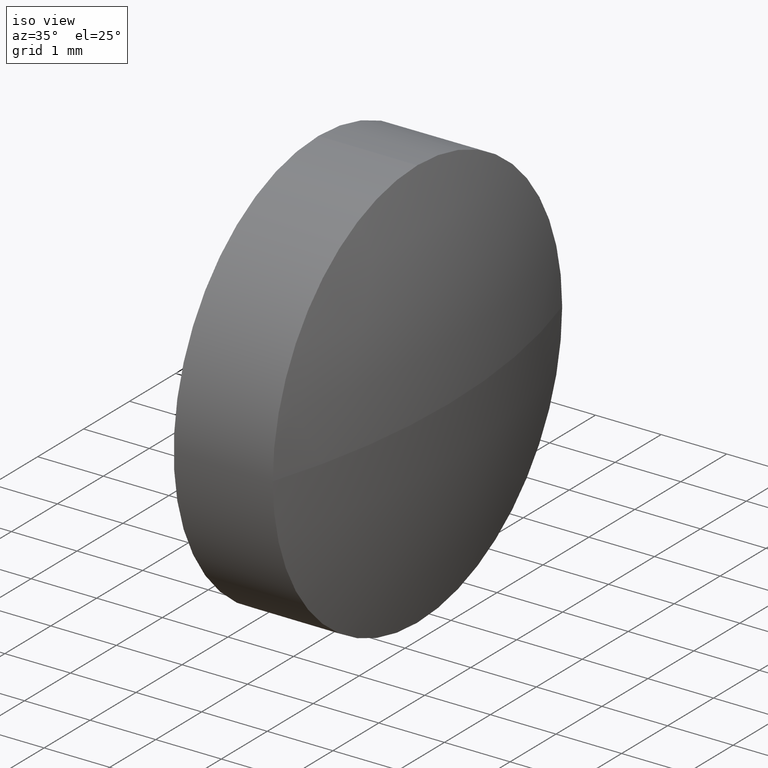
[diagram: clean part render]
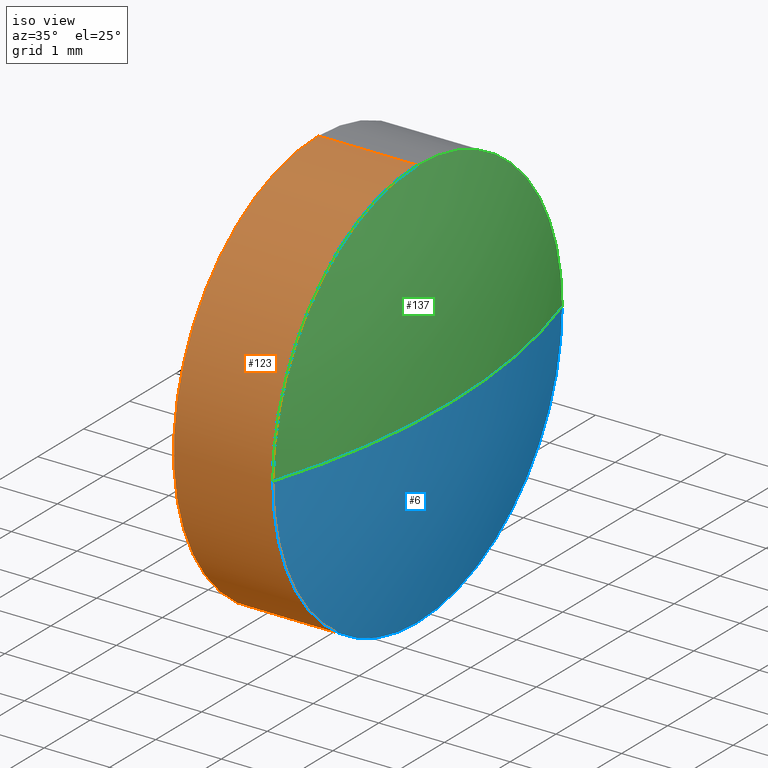
[diagram: same view with three faces highlighted in distinct colors, each labeled with its STEP entity id]
A machine part, iso view with three faces highlighted in distinct colors.
Their STEP definitions:

[orange] entity #123 — the highlighted cylindrical surface (partial cylindrical patch) has radius 3.15 mm, axis along (-1, -0, -0).
#2 = LINE ( 'NONE', #28, #93 ) ;
#5 = DIRECTION ( 'NONE',  ( -1.000000000000000000, -0.0000000000000000000, -0.0000000000000000000 ) ) ;
#7 = VERTEX_POINT ( 'NONE', #164 ) ;
#10 = VERTEX_POINT ( 'NONE', #106 ) ;
#13 = EDGE_CURVE ( 'NONE', #172, #152, #20, .T. ) ;
#20 = LINE ( 'NONE', #78, #95 ) ;
#24 = CIRCLE ( 'NONE', #118, 3.149999999999999900 ) ;
#25 = ORIENTED_EDGE ( 'NONE', *, *, #60, .F. ) ;
#28 = CARTESIAN_POINT ( 'NONE',  ( 563.4918386619660900, 45.46463200526830000, -3.149999999999999900 ) ) ;
#29 = DIRECTION ( 'NONE',  ( -1.000000000000000000, -0.0000000000000000000, -0.0000000000000000000 ) ) ;
#39 = CIRCLE ( 'NONE', #144, 3.149999999999999900 ) ;
#42 = EDGE_CURVE ( 'NONE', #7, #172, #39, .T. ) ;
#43 = CARTESIAN_POINT ( 'NONE',  ( 565.8634668315505700, 45.46463200526830000, 0.0000000000000000000 ) ) ;
#53 = DIRECTION ( 'NONE',  ( -1.000000000000000000, -0.0000000000000000000, -0.0000000000000000000 ) ) ;
#54 = AXIS2_PLACEMENT_3D ( 'NONE', #124, #80, #82 ) ;
#55 = CARTESIAN_POINT ( 'NONE',  ( 564.3534668315505800, 45.46463200526830000, 0.0000000000000000000 ) ) ;
#60 = EDGE_CURVE ( 'NONE', #183, #10, #2, .T. ) ;
#75 = FACE_OUTER_BOUND ( 'NONE', #115, .T. ) ;
#78 = CARTESIAN_POINT ( 'NONE',  ( 563.4918386619660900, 45.46463200526830000, 3.149999999999999900 ) ) ;
#80 = DIRECTION ( 'NONE',  ( -1.000000000000000000, -0.0000000000000000000, -0.0000000000000000000 ) ) ;
#82 = DIRECTION ( 'NONE',  ( 0.0000000000000000000, 0.0000000000000000000, 1.000000000000000000 ) ) ;
#83 = CARTESIAN_POINT ( 'NONE',  ( 565.8634668315505700, 45.46463200526830000, -3.149999999999999900 ) ) ;
#89 = CIRCLE ( 'NONE', #186, 3.149999999999999900 ) ;
#93 = VECTOR ( 'NONE', #29, 1000.000000000000000 ) ;
#95 = VECTOR ( 'NONE', #5, 1000.000000000000000 ) ;
#105 = ORIENTED_EDGE ( 'NONE', *, *, #13, .T. ) ;
#106 = CARTESIAN_POINT ( 'NONE',  ( 564.3534668315505800, 45.46463200526830000, -3.149999999999999900 ) ) ;
#110 = DIRECTION ( 'NONE',  ( -1.000000000000000000, -0.0000000000000000000, -0.0000000000000000000 ) ) ;
#115 = EDGE_LOOP ( 'NONE', ( #25, #143, #158, #105, #150 ) ) ;
#118 = AXIS2_PLACEMENT_3D ( 'NONE', #55, #53, #142 ) ;
#123 = ADVANCED_FACE ( 'NONE', ( #75 ), #157, .T. ) ;
#124 = CARTESIAN_POINT ( 'NONE',  ( 563.4918386619660900, 45.46463200526830000, 0.0000000000000000000 ) ) ;
#132 = DIRECTION ( 'NONE',  ( -1.000000000000000000, -0.0000000000000000000, -0.0000000000000000000 ) ) ;
#142 = DIRECTION ( 'NONE',  ( 0.0000000000000000000, 0.0000000000000000000, 1.000000000000000000 ) ) ;
#143 = ORIENTED_EDGE ( 'NONE', *, *, #185, .T. ) ;
#144 = AXIS2_PLACEMENT_3D ( 'NONE', #43, #132, #162 ) ;
#146 = CARTESIAN_POINT ( 'NONE',  ( 565.8634668315505700, 45.46463200526830000, 3.149999999999999900 ) ) ;
#148 = EDGE_CURVE ( 'NONE', #10, #152, #24, .T. ) ;
#150 = ORIENTED_EDGE ( 'NONE', *, *, #148, .F. ) ;
#152 = VERTEX_POINT ( 'NONE', #167 ) ;
#156 = DIRECTION ( 'NONE',  ( 0.0000000000000000000, 0.0000000000000000000, 1.000000000000000000 ) ) ;
#157 = CYLINDRICAL_SURFACE ( 'NONE', #54, 3.149999999999999900 ) ;
#158 = ORIENTED_EDGE ( 'NONE', *, *, #42, .T. ) ;
#159 = CARTESIAN_POINT ( 'NONE',  ( 565.8634668315505700, 45.46463200526830000, 0.0000000000000000000 ) ) ;
#162 = DIRECTION ( 'NONE',  ( 0.0000000000000000000, 0.0000000000000000000, 1.000000000000000000 ) ) ;
#164 = CARTESIAN_POINT ( 'NONE',  ( 565.8634668315505700, 42.31463200526834400, 0.0000000000000000000 ) ) ;
#167 = CARTESIAN_POINT ( 'NONE',  ( 564.3534668315505800, 45.46463200526830000, 3.149999999999999900 ) ) ;
#172 = VERTEX_POINT ( 'NONE', #146 ) ;
#183 = VERTEX_POINT ( 'NONE', #83 ) ;
#185 = EDGE_CURVE ( 'NONE', #183, #7, #89, .T. ) ;
#186 = AXIS2_PLACEMENT_3D ( 'NONE', #159, #110, #156 ) ;

[blue] entity #6 — the highlighted spherical surface has radius 10.37 mm.
#1 = ORIENTED_EDGE ( 'NONE', *, *, #22, .F. ) ;
#4 = DIRECTION ( 'NONE',  ( 0.0000000000000000000, 0.0000000000000000000, 1.000000000000000000 ) ) ;
#6 = ADVANCED_FACE ( 'NONE', ( #99 ), #65, .T. ) ;
#7 = VERTEX_POINT ( 'NONE', #164 ) ;
#18 = DIRECTION ( 'NONE',  ( -1.000000000000000000, 0.0000000000000000000, 0.0000000000000000000 ) ) ;
#21 = AXIS2_PLACEMENT_3D ( 'NONE', #31, #66, #18 ) ;
#22 = EDGE_CURVE ( 'NONE', #179, #72, #168, .T. ) ;
#27 = DIRECTION ( 'NONE',  ( 0.0000000000000000000, -1.000000000000000000, 0.0000000000000000000 ) ) ;
#31 = CARTESIAN_POINT ( 'NONE',  ( 555.9834668315506900, 45.46463200526834900, 0.0000000000000000000 ) ) ;
#34 = CARTESIAN_POINT ( 'NONE',  ( 565.8634668315505700, 48.61463200526829800, 3.857637417314100600E-016 ) ) ;
#44 = DIRECTION ( 'NONE',  ( 0.0000000000000000000, -1.224646799147353200E-016, 1.000000000000000000 ) ) ;
#49 = EDGE_CURVE ( 'NONE', #72, #183, #97, .T. ) ;
#62 = ORIENTED_EDGE ( 'NONE', *, *, #133, .T. ) ;
#65 = SPHERICAL_SURFACE ( 'NONE', #100, 10.36999999999988000 ) ;
#66 = DIRECTION ( 'NONE',  ( 0.0000000000000000000, 0.0000000000000000000, -1.000000000000000000 ) ) ;
#72 = VERTEX_POINT ( 'NONE', #34 ) ;
#77 = ORIENTED_EDGE ( 'NONE', *, *, #185, .F. ) ;
#83 = CARTESIAN_POINT ( 'NONE',  ( 565.8634668315505700, 45.46463200526830000, -3.149999999999999900 ) ) ;
#84 = DIRECTION ( 'NONE',  ( -1.000000000000000000, -0.0000000000000000000, -0.0000000000000000000 ) ) ;
#87 = ORIENTED_EDGE ( 'NONE', *, *, #49, .F. ) ;
#89 = CIRCLE ( 'NONE', #186, 3.149999999999999900 ) ;
#97 = CIRCLE ( 'NONE', #169, 3.149999999999999900 ) ;
#99 = FACE_OUTER_BOUND ( 'NONE', #102, .T. ) ;
#100 = AXIS2_PLACEMENT_3D ( 'NONE', #175, #4, #27 ) ;
#102 = EDGE_LOOP ( 'NONE', ( #1, #62, #77, #87 ) ) ;
#110 = DIRECTION ( 'NONE',  ( -1.000000000000000000, -0.0000000000000000000, -0.0000000000000000000 ) ) ;
#112 = AXIS2_PLACEMENT_3D ( 'NONE', #134, #44, #135 ) ;
#114 = CIRCLE ( 'NONE', #21, 10.36999999999988000 ) ;
#122 = CARTESIAN_POINT ( 'NONE',  ( 565.8634668315505700, 45.46463200526830000, 0.0000000000000000000 ) ) ;
#133 = EDGE_CURVE ( 'NONE', #179, #7, #114, .T. ) ;
#134 = CARTESIAN_POINT ( 'NONE',  ( 555.9834668315506900, 45.46463200526834900, 0.0000000000000000000 ) ) ;
#135 = DIRECTION ( 'NONE',  ( 0.0000000000000000000, -1.000000000000000000, -1.224646799147353200E-016 ) ) ;
#156 = DIRECTION ( 'NONE',  ( 0.0000000000000000000, 0.0000000000000000000, 1.000000000000000000 ) ) ;
#159 = CARTESIAN_POINT ( 'NONE',  ( 565.8634668315505700, 45.46463200526830000, 0.0000000000000000000 ) ) ;
#164 = CARTESIAN_POINT ( 'NONE',  ( 565.8634668315505700, 42.31463200526834400, 0.0000000000000000000 ) ) ;
#168 = CIRCLE ( 'NONE', #112, 10.36999999999988000 ) ;
#169 = AXIS2_PLACEMENT_3D ( 'NONE', #122, #84, #177 ) ;
#175 = CARTESIAN_POINT ( 'NONE',  ( 555.9834668315506900, 45.46463200526834900, 0.0000000000000000000 ) ) ;
#177 = DIRECTION ( 'NONE',  ( 0.0000000000000000000, 0.0000000000000000000, 1.000000000000000000 ) ) ;
#179 = VERTEX_POINT ( 'NONE', #180 ) ;
#180 = CARTESIAN_POINT ( 'NONE',  ( 566.3534668315505800, 45.46463200526834900, 0.0000000000000000000 ) ) ;
#183 = VERTEX_POINT ( 'NONE', #83 ) ;
#185 = EDGE_CURVE ( 'NONE', #183, #7, #89, .T. ) ;
#186 = AXIS2_PLACEMENT_3D ( 'NONE', #159, #110, #156 ) ;

[green] entity #137 — the highlighted spherical surface has radius 10.37 mm.
#7 = VERTEX_POINT ( 'NONE', #164 ) ;
#9 = CARTESIAN_POINT ( 'NONE',  ( 555.9834668315506900, 45.46463200526834900, 0.0000000000000000000 ) ) ;
#18 = DIRECTION ( 'NONE',  ( -1.000000000000000000, 0.0000000000000000000, 0.0000000000000000000 ) ) ;
#21 = AXIS2_PLACEMENT_3D ( 'NONE', #31, #66, #18 ) ;
#22 = EDGE_CURVE ( 'NONE', #179, #72, #168, .T. ) ;
#26 = ORIENTED_EDGE ( 'NONE', *, *, #56, .F. ) ;
#31 = CARTESIAN_POINT ( 'NONE',  ( 555.9834668315506900, 45.46463200526834900, 0.0000000000000000000 ) ) ;
#32 = AXIS2_PLACEMENT_3D ( 'NONE', #9, #91, #108 ) ;
#34 = CARTESIAN_POINT ( 'NONE',  ( 565.8634668315505700, 48.61463200526829800, 3.857637417314100600E-016 ) ) ;
#37 = SPHERICAL_SURFACE ( 'NONE', #32, 10.36999999999988000 ) ;
#39 = CIRCLE ( 'NONE', #144, 3.149999999999999900 ) ;
#42 = EDGE_CURVE ( 'NONE', #7, #172, #39, .T. ) ;
#43 = CARTESIAN_POINT ( 'NONE',  ( 565.8634668315505700, 45.46463200526830000, 0.0000000000000000000 ) ) ;
#44 = DIRECTION ( 'NONE',  ( 0.0000000000000000000, -1.224646799147353200E-016, 1.000000000000000000 ) ) ;
#46 = CARTESIAN_POINT ( 'NONE',  ( 565.8634668315505700, 45.46463200526830000, 0.0000000000000000000 ) ) ;
#47 = DIRECTION ( 'NONE',  ( 0.0000000000000000000, 0.0000000000000000000, 1.000000000000000000 ) ) ;
#52 = CIRCLE ( 'NONE', #176, 3.149999999999999900 ) ;
#56 = EDGE_CURVE ( 'NONE', #172, #72, #52, .T. ) ;
#66 = DIRECTION ( 'NONE',  ( 0.0000000000000000000, 0.0000000000000000000, -1.000000000000000000 ) ) ;
#72 = VERTEX_POINT ( 'NONE', #34 ) ;
#74 = FACE_OUTER_BOUND ( 'NONE', #161, .T. ) ;
#81 = ORIENTED_EDGE ( 'NONE', *, *, #133, .F. ) ;
#91 = DIRECTION ( 'NONE',  ( 0.0000000000000000000, 0.0000000000000000000, 1.000000000000000000 ) ) ;
#108 = DIRECTION ( 'NONE',  ( 0.0000000000000000000, -1.000000000000000000, 0.0000000000000000000 ) ) ;
#112 = AXIS2_PLACEMENT_3D ( 'NONE', #134, #44, #135 ) ;
#114 = CIRCLE ( 'NONE', #21, 10.36999999999988000 ) ;
#121 = ORIENTED_EDGE ( 'NONE', *, *, #42, .F. ) ;
#131 = ORIENTED_EDGE ( 'NONE', *, *, #22, .T. ) ;
#132 = DIRECTION ( 'NONE',  ( -1.000000000000000000, -0.0000000000000000000, -0.0000000000000000000 ) ) ;
#133 = EDGE_CURVE ( 'NONE', #179, #7, #114, .T. ) ;
#134 = CARTESIAN_POINT ( 'NONE',  ( 555.9834668315506900, 45.46463200526834900, 0.0000000000000000000 ) ) ;
#135 = DIRECTION ( 'NONE',  ( 0.0000000000000000000, -1.000000000000000000, -1.224646799147353200E-016 ) ) ;
#137 = ADVANCED_FACE ( 'NONE', ( #74 ), #37, .T. ) ;
#138 = DIRECTION ( 'NONE',  ( -1.000000000000000000, -0.0000000000000000000, -0.0000000000000000000 ) ) ;
#144 = AXIS2_PLACEMENT_3D ( 'NONE', #43, #132, #162 ) ;
#146 = CARTESIAN_POINT ( 'NONE',  ( 565.8634668315505700, 45.46463200526830000, 3.149999999999999900 ) ) ;
#161 = EDGE_LOOP ( 'NONE', ( #81, #131, #26, #121 ) ) ;
#162 = DIRECTION ( 'NONE',  ( 0.0000000000000000000, 0.0000000000000000000, 1.000000000000000000 ) ) ;
#164 = CARTESIAN_POINT ( 'NONE',  ( 565.8634668315505700, 42.31463200526834400, 0.0000000000000000000 ) ) ;
#168 = CIRCLE ( 'NONE', #112, 10.36999999999988000 ) ;
#172 = VERTEX_POINT ( 'NONE', #146 ) ;
#176 = AXIS2_PLACEMENT_3D ( 'NONE', #46, #138, #47 ) ;
#179 = VERTEX_POINT ( 'NONE', #180 ) ;
#180 = CARTESIAN_POINT ( 'NONE',  ( 566.3534668315505800, 45.46463200526834900, 0.0000000000000000000 ) ) ;